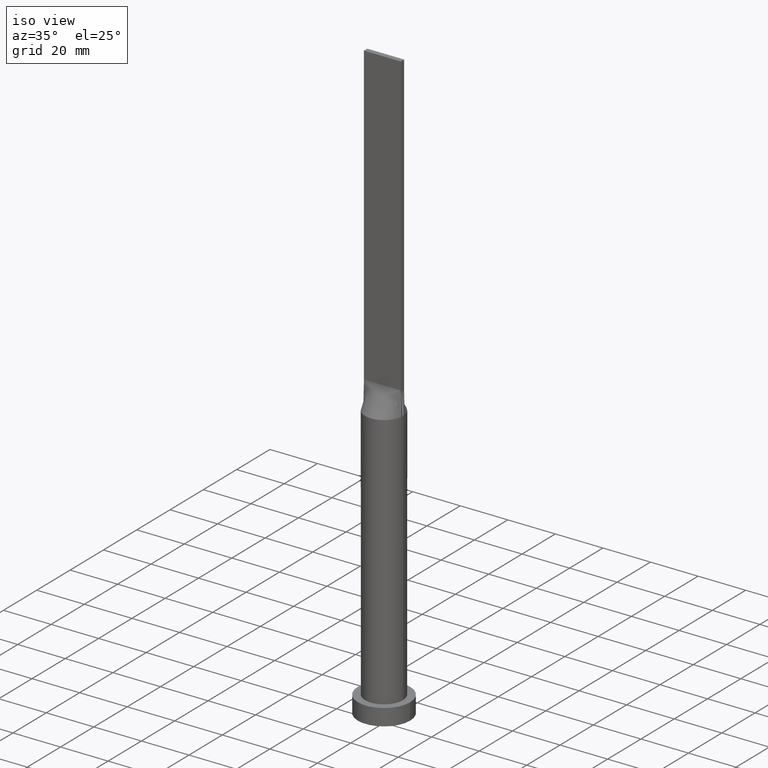
[diagram: clean part render]
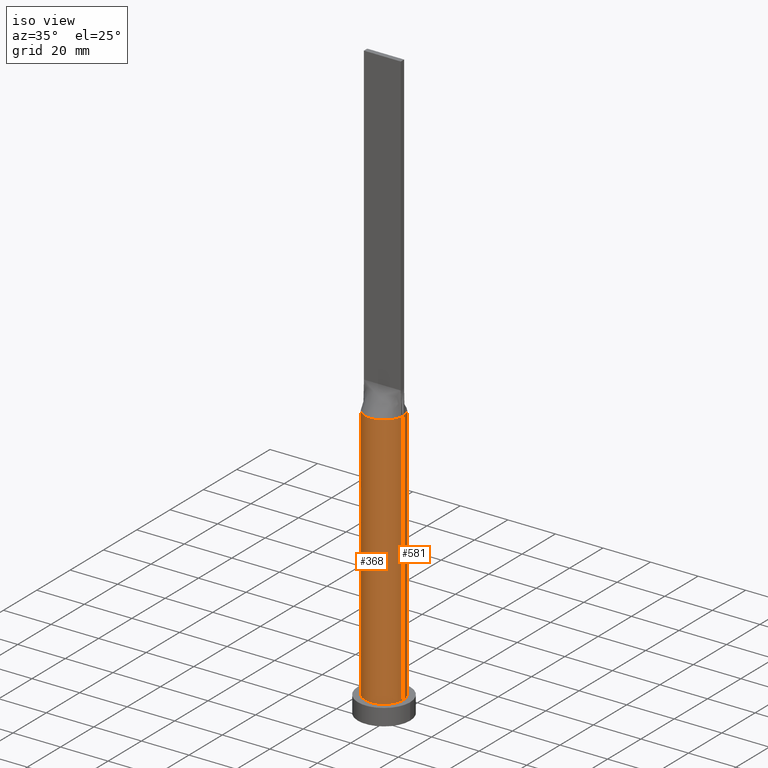
[diagram: same view with one multi-face feature highlighted, each face labeled with its STEP entity id]
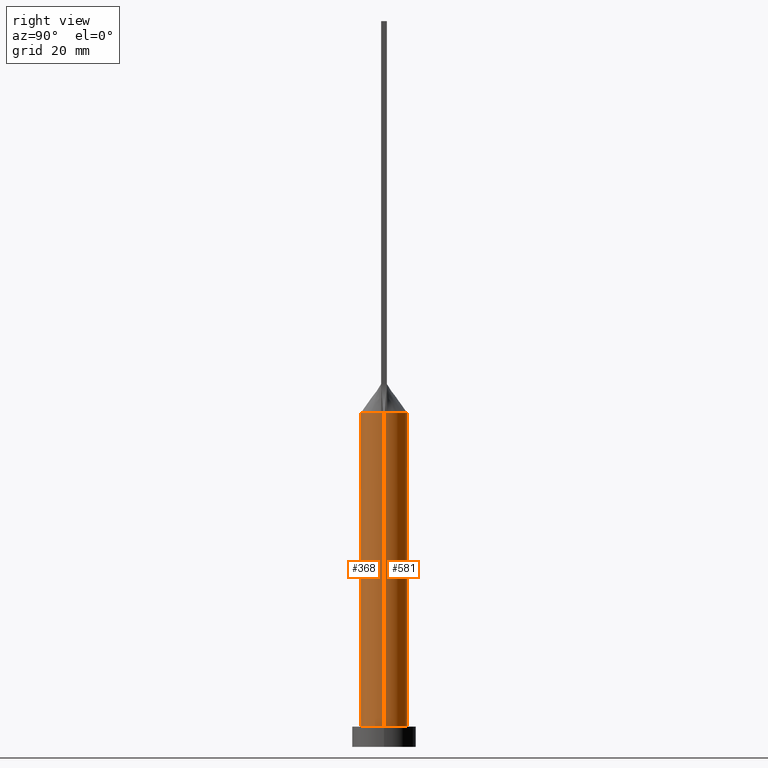
[diagram: same view with one multi-face feature highlighted, each face labeled with its STEP entity id]
A machine part, iso view. The highlighted faces form ONE feature: a constant-radius fillet chain: 2 tangent blend faces with common blend radius 8 mm. The faces share edges in the B-rep.
A second angle (right view) of the same feature is appended — it is thin or edge-on in the first view.
Their STEP definitions:
[1] entity #368 (Cylinder):
#2 = ORIENTED_EDGE ( 'NONE', *, *, #195, .F. ) ;
#20 = VERTEX_POINT ( 'NONE', #77 ) ;
#30 = DIRECTION ( 'NONE',  ( -0.000000000000000000, -0.000000000000000000, -1.000000000000000000 ) ) ;
#39 = CARTESIAN_POINT ( 'NONE',  ( 0.000000000000000000, 0.000000000000000000, 115.0000000000000000 ) ) ;
#41 = ORIENTED_EDGE ( 'NONE', *, *, #576, .F. ) ;
#59 = CARTESIAN_POINT ( 'NONE',  ( 7.999864793045824207, 2.000157186781041891E-15, 115.0000000000000000 ) ) ;
#77 = CARTESIAN_POINT ( 'NONE',  ( 8.000000000000000000, 9.797174393178825657E-16, 7.000000000000000000 ) ) ;
#94 = CARTESIAN_POINT ( 'NONE',  ( 0.000000000000000000, 0.000000000000000000, 115.0000000000000000 ) ) ;
#123 = CIRCLE ( 'NONE', #398, 8.000000000000000000 ) ;
#129 = CARTESIAN_POINT ( 'NONE',  ( 0.000000000000000000, 0.000000000000000000, 7.000000000000000000 ) ) ;
#131 = DIRECTION ( 'NONE',  ( 1.000000000000000000, 0.000000000000000000, 0.000000000000000000 ) ) ;
#140 = DIRECTION ( 'NONE',  ( 1.000000000000000000, 9.769962616701377556E-15, 0.000000000000000000 ) ) ;
#147 = DIRECTION ( 'NONE',  ( 1.000000000000000000, 0.000000000000000000, 0.000000000000000000 ) ) ;
#163 = ORIENTED_EDGE ( 'NONE', *, *, #360, .F. ) ;
#195 = EDGE_CURVE ( 'NONE', #292, #226, #635, .T. ) ;
#204 = CARTESIAN_POINT ( 'NONE',  ( 8.000000000000000000, 9.797174393178825657E-16, 115.0000000000000000 ) ) ;
#221 = ORIENTED_EDGE ( 'NONE', *, *, #594, .F. ) ;
#226 = VERTEX_POINT ( 'NONE', #389 ) ;
#246 = CIRCLE ( 'NONE', #497, 8.000000000000000000 ) ;
#254 = FACE_OUTER_BOUND ( 'NONE', #583, .T. ) ;
#259 = LINE ( 'NONE', #204, #288 ) ;
#273 = ORIENTED_EDGE ( 'NONE', *, *, #488, .T. ) ;
#277 = VERTEX_POINT ( 'NONE', #304 ) ;
#279 = VERTEX_POINT ( 'NONE', #467 ) ;
#280 = CIRCLE ( 'NONE', #617, 8.000000000000000000 ) ;
#281 = CARTESIAN_POINT ( 'NONE',  ( -8.000000000000000000, 0.000000000000000000, 115.0000000000000000 ) ) ;
#288 = VECTOR ( 'NONE', #510, 1000.000000000000000 ) ;
#292 = VERTEX_POINT ( 'NONE', #410 ) ;
#296 = DIRECTION ( 'NONE',  ( 0.000000000000000000, 0.000000000000000000, 1.000000000000000000 ) ) ;
#304 = CARTESIAN_POINT ( 'NONE',  ( -7.999864793045825984, 2.648518981350782698E-14, 115.0000000000000142 ) ) ;
#309 = CARTESIAN_POINT ( 'NONE',  ( 0.000000000000000000, 0.000000000000000000, 115.0000000000000000 ) ) ;
#315 = VERTEX_POINT ( 'NONE', #59 ) ;
#334 = LINE ( 'NONE', #281, #627 ) ;
#360 = EDGE_CURVE ( 'NONE', #315, #20, #259, .T. ) ;
#366 = AXIS2_PLACEMENT_3D ( 'NONE', #94, #402, #585 ) ;
#368 = ADVANCED_FACE ( 'NONE', ( #254 ), #554, .T. ) ;
#386 = DIRECTION ( 'NONE',  ( 0.000000000000000000, 0.000000000000000000, 1.000000000000000000 ) ) ;
#389 = CARTESIAN_POINT ( 'NONE',  ( 7.934268799922667981, -1.023776637617846319, 115.0000000000000000 ) ) ;
#398 = AXIS2_PLACEMENT_3D ( 'NONE', #39, #586, #140 ) ;
#402 = DIRECTION ( 'NONE',  ( 0.000000000000000000, 0.000000000000000000, 1.000000000000000000 ) ) ;
#403 = CARTESIAN_POINT ( 'NONE',  ( 0.000000000000000000, 0.000000000000000000, 115.0000000000000000 ) ) ;
#410 = CARTESIAN_POINT ( 'NONE',  ( -7.934257051336532029, -1.023775119746132001, 115.0000000000000000 ) ) ;
#450 = EDGE_CURVE ( 'NONE', #279, #20, #246, .T. ) ;
#464 = DIRECTION ( 'NONE',  ( -1.000000000000000000, 0.000000000000000000, 0.000000000000000000 ) ) ;
#466 = ORIENTED_EDGE ( 'NONE', *, *, #450, .T. ) ;
#467 = CARTESIAN_POINT ( 'NONE',  ( -8.000000000000000000, 0.000000000000000000, 7.000000000000000000 ) ) ;
#488 = EDGE_CURVE ( 'NONE', #277, #279, #334, .T. ) ;
#497 = AXIS2_PLACEMENT_3D ( 'NONE', #129, #386, #131 ) ;
#508 = DIRECTION ( 'NONE',  ( -0.000000000000000000, -0.000000000000000000, -1.000000000000000000 ) ) ;
#510 = DIRECTION ( 'NONE',  ( -0.000000000000000000, -0.000000000000000000, -1.000000000000000000 ) ) ;
#554 = CYLINDRICAL_SURFACE ( 'NONE', #604, 8.000000000000000000 ) ;
#576 = EDGE_CURVE ( 'NONE', #226, #315, #123, .T. ) ;
#583 = EDGE_LOOP ( 'NONE', ( #163, #41, #2, #221, #273, #466 ) ) ;
#585 = DIRECTION ( 'NONE',  ( 1.000000000000000000, 0.000000000000000000, 0.000000000000000000 ) ) ;
#586 = DIRECTION ( 'NONE',  ( 0.000000000000000000, 0.000000000000000000, 1.000000000000000000 ) ) ;
#594 = EDGE_CURVE ( 'NONE', #277, #292, #280, .T. ) ;
#604 = AXIS2_PLACEMENT_3D ( 'NONE', #309, #508, #464 ) ;
#617 = AXIS2_PLACEMENT_3D ( 'NONE', #403, #296, #147 ) ;
#627 = VECTOR ( 'NONE', #30, 1000.000000000000000 ) ;
#635 = CIRCLE ( 'NONE', #366, 8.000000000000000000 ) ;
[2] entity #581 (Cylinder):
#1 = CARTESIAN_POINT ( 'NONE',  ( -0.5861720261543129640, 7.999999999999998224, 114.9999999999999858 ) ) ;
#5 = CARTESIAN_POINT ( 'NONE',  ( 2.847317194822259534, 7.497028652483948008, 115.0000000000000284 ) ) ;
#8 = CARTESIAN_POINT ( 'NONE',  ( -7.192469010134845853, 3.526369025759696019, 114.9999999999999716 ) ) ;
#10 = CYLINDRICAL_SURFACE ( 'NONE', #206, 8.000000000000000000 ) ;
#16 = AXIS2_PLACEMENT_3D ( 'NONE', #141, #96, #590 ) ;
#20 = VERTEX_POINT ( 'NONE', #77 ) ;
#30 = DIRECTION ( 'NONE',  ( -0.000000000000000000, -0.000000000000000000, -1.000000000000000000 ) ) ;
#45 = CARTESIAN_POINT ( 'NONE',  ( 5.562660223239392465, 5.770452176164421410, 115.0000000000000284 ) ) ;
#59 = CARTESIAN_POINT ( 'NONE',  ( 7.999864793045824207, 2.000157186781041891E-15, 115.0000000000000000 ) ) ;
#64 = CIRCLE ( 'NONE', #151, 8.000000000000000000 ) ;
#75 = ORIENTED_EDGE ( 'NONE', *, *, #274, .F. ) ;
#77 = CARTESIAN_POINT ( 'NONE',  ( 8.000000000000000000, 9.797174393178825657E-16, 7.000000000000000000 ) ) ;
#82 = CARTESIAN_POINT ( 'NONE',  ( -7.934264564332944580, 1.023776086464161406, 115.0000000000000000 ) ) ;
#89 = CARTESIAN_POINT ( 'NONE',  ( -5.562660223239390689, 5.770452176164420521, 115.0000000000000142 ) ) ;
#92 = DIRECTION ( 'NONE',  ( 1.000000000000000000, 0.000000000000000000, 0.000000000000000000 ) ) ;
#96 = DIRECTION ( 'NONE',  ( 0.000000000000000000, 0.000000000000000000, 1.000000000000000000 ) ) ;
#104 = CARTESIAN_POINT ( 'NONE',  ( 7.934252830235720033, 1.023774570959714802, 115.0000000000000000 ) ) ;
#106 = CARTESIAN_POINT ( 'NONE',  ( -6.994548530637814565, 3.908833842696238570, 114.9999999999999858 ) ) ;
#113 = CARTESIAN_POINT ( 'NONE',  ( -7.934264564332944580, 1.023776086464161406, 115.0000000000000000 ) ) ;
#117 = CARTESIAN_POINT ( 'NONE',  ( -6.226863775955933100, 5.046530946333157353, 114.9999999999999858 ) ) ;
#136 = CARTESIAN_POINT ( 'NONE',  ( -2.847317194822260422, 7.497028652483947120, 115.0000000000000284 ) ) ;
#141 = CARTESIAN_POINT ( 'NONE',  ( 0.000000000000000000, 0.000000000000000000, 115.0000000000000000 ) ) ;
#143 = DIRECTION ( 'NONE',  ( -0.000000000000000000, -0.000000000000000000, -1.000000000000000000 ) ) ;
#151 = AXIS2_PLACEMENT_3D ( 'NONE', #536, #302, #92 ) ;
#171 = ORIENTED_EDGE ( 'NONE', *, *, #179, .T. ) ;
#179 = EDGE_CURVE ( 'NONE', #20, #279, #255, .T. ) ;
#189 = DIRECTION ( 'NONE',  ( 0.000000000000000000, 0.000000000000000000, 1.000000000000000000 ) ) ;
#197 = CARTESIAN_POINT ( 'NONE',  ( 0.000000000000000000, 0.000000000000000000, 115.0000000000000000 ) ) ;
#198 = CARTESIAN_POINT ( 'NONE',  ( -1.172177046651856402, 7.934824862069282503, 115.0000000000000284 ) ) ;
#199 = CARTESIAN_POINT ( 'NONE',  ( -7.849610172922081297, 1.679519592204999023, 114.9999999999999858 ) ) ;
#200 = ORIENTED_EDGE ( 'NONE', *, *, #488, .F. ) ;
#204 = CARTESIAN_POINT ( 'NONE',  ( 8.000000000000000000, 9.797174393178825657E-16, 115.0000000000000000 ) ) ;
#206 = AXIS2_PLACEMENT_3D ( 'NONE', #197, #143, #365 ) ;
#212 = EDGE_CURVE ( 'NONE', #469, #277, #243, .T. ) ;
#236 = EDGE_CURVE ( 'NONE', #315, #608, #64, .T. ) ;
#243 = CIRCLE ( 'NONE', #16, 8.000000000000000000 ) ;
#249 = CARTESIAN_POINT ( 'NONE',  ( 2.302877821226935406, 7.683241396761612663, 115.0000000000000284 ) ) ;
#255 = CIRCLE ( 'NONE', #613, 8.000000000000000000 ) ;
#259 = LINE ( 'NONE', #204, #288 ) ;
#274 = EDGE_CURVE ( 'NONE', #608, #469, #517, .T. ) ;
#277 = VERTEX_POINT ( 'NONE', #304 ) ;
#279 = VERTEX_POINT ( 'NONE', #467 ) ;
#281 = CARTESIAN_POINT ( 'NONE',  ( -8.000000000000000000, 0.000000000000000000, 115.0000000000000000 ) ) ;
#287 = CARTESIAN_POINT ( 'NONE',  ( -2.302877821226935851, 7.683241396761610886, 115.0000000000000284 ) ) ;
#288 = VECTOR ( 'NONE', #510, 1000.000000000000000 ) ;
#290 = CARTESIAN_POINT ( 'NONE',  ( 7.849610172922079521, 1.679519592204998801, 114.9999999999999858 ) ) ;
#295 = CARTESIAN_POINT ( 'NONE',  ( 6.511821874825409751, 4.668925682402791821, 115.0000000000000000 ) ) ;
#298 = CARTESIAN_POINT ( 'NONE',  ( 6.226863775955932212, 5.046530946333158241, 115.0000000000000142 ) ) ;
#302 = DIRECTION ( 'NONE',  ( 0.000000000000000000, 0.000000000000000000, 1.000000000000000000 ) ) ;
#304 = CARTESIAN_POINT ( 'NONE',  ( -7.999864793045825984, 2.648518981350782698E-14, 115.0000000000000142 ) ) ;
#315 = VERTEX_POINT ( 'NONE', #59 ) ;
#334 = LINE ( 'NONE', #281, #627 ) ;
#342 = CARTESIAN_POINT ( 'NONE',  ( -4.333237558274722900, 6.745559271922134670, 115.0000000000000284 ) ) ;
#343 = ORIENTED_EDGE ( 'NONE', *, *, #236, .F. ) ;
#347 = FACE_OUTER_BOUND ( 'NONE', #447, .T. ) ;
#349 = CARTESIAN_POINT ( 'NONE',  ( 7.934252830235720033, 1.023774570959714802, 115.0000000000000000 ) ) ;
#352 = CARTESIAN_POINT ( 'NONE',  ( 7.192469010134847629, 3.526369025759696907, 115.0000000000000000 ) ) ;
#360 = EDGE_CURVE ( 'NONE', #315, #20, #259, .T. ) ;
#365 = DIRECTION ( 'NONE',  ( -1.000000000000000000, 0.000000000000000000, 0.000000000000000000 ) ) ;
#399 = DIRECTION ( 'NONE',  ( 1.000000000000000000, 0.000000000000000000, 0.000000000000000000 ) ) ;
#443 = CARTESIAN_POINT ( 'NONE',  ( 3.862537548001455878, 7.028047916340264933, 115.0000000000000284 ) ) ;
#447 = EDGE_LOOP ( 'NONE', ( #343, #621, #171, #200, #572, #75 ) ) ;
#449 = CARTESIAN_POINT ( 'NONE',  ( 0.5861720261543130750, 7.999999999999998224, 115.0000000000000142 ) ) ;
#465 = CARTESIAN_POINT ( 'NONE',  ( -6.511821874825407974, 4.668925682402791821, 115.0000000000000142 ) ) ;
#467 = CARTESIAN_POINT ( 'NONE',  ( -8.000000000000000000, 0.000000000000000000, 7.000000000000000000 ) ) ;
#469 = VERTEX_POINT ( 'NONE', #82 ) ;
#488 = EDGE_CURVE ( 'NONE', #277, #279, #334, .T. ) ;
#490 = CARTESIAN_POINT ( 'NONE',  ( 4.333237558274722900, 6.745559271922132893, 115.0000000000000284 ) ) ;
#501 = CARTESIAN_POINT ( 'NONE',  ( 5.183259239191615464, 6.116644610143058713, 115.0000000000000284 ) ) ;
#504 = CARTESIAN_POINT ( 'NONE',  ( -7.675166908885236339, 2.399868494543667907, 114.9999999999999858 ) ) ;
#510 = DIRECTION ( 'NONE',  ( -0.000000000000000000, -0.000000000000000000, -1.000000000000000000 ) ) ;
#517 = B_SPLINE_CURVE_WITH_KNOTS ( 'NONE', 3,
 ( #349, #290, #541, #352, #546, #295, #298, #45, #501, #490, #443, #5, #249, #582, #449, #1, #198, #287, #136, #593, #342, #534, #89, #117, #465, #106, #8, #504, #199, #113 ),
 .UNSPECIFIED., .F., .F.,
 ( 4, 2, 2, 2, 2, 2, 2, 2, 2, 2, 2, 2, 2, 2, 4 ),
 ( 0.000000000000000000, 0.1250000000000000000, 0.1875000000000000000, 0.2500000000000000000, 0.3125000000000000000, 0.3750000000000000000, 0.4375000000000000000, 0.5000000000000000000, 0.5625000000000000000, 0.6250000000000000000, 0.6875000000000000000, 0.7500000000000000000, 0.8125000000000000000, 0.8750000000000000000, 1.000000000000000000 ),
 .UNSPECIFIED. ) ;
#534 = CARTESIAN_POINT ( 'NONE',  ( -5.183259239191613688, 6.116644610143057825, 114.9999999999999858 ) ) ;
#536 = CARTESIAN_POINT ( 'NONE',  ( 0.000000000000000000, 0.000000000000000000, 115.0000000000000000 ) ) ;
#541 = CARTESIAN_POINT ( 'NONE',  ( 7.675166908885234562, 2.399868494543665243, 114.9999999999999574 ) ) ;
#546 = CARTESIAN_POINT ( 'NONE',  ( 6.994548530637815453, 3.908833842696238570, 115.0000000000000142 ) ) ;
#549 = CARTESIAN_POINT ( 'NONE',  ( 0.000000000000000000, 0.000000000000000000, 7.000000000000000000 ) ) ;
#572 = ORIENTED_EDGE ( 'NONE', *, *, #212, .F. ) ;
#581 = ADVANCED_FACE ( 'NONE', ( #347 ), #10, .T. ) ;
#582 = CARTESIAN_POINT ( 'NONE',  ( 1.172177046651856624, 7.934824862069278950, 115.0000000000000284 ) ) ;
#590 = DIRECTION ( 'NONE',  ( 1.000000000000000000, 0.000000000000000000, 0.000000000000000000 ) ) ;
#593 = CARTESIAN_POINT ( 'NONE',  ( -3.862537548001455878, 7.028047916340264045, 115.0000000000000284 ) ) ;
#608 = VERTEX_POINT ( 'NONE', #104 ) ;
#613 = AXIS2_PLACEMENT_3D ( 'NONE', #549, #189, #399 ) ;
#621 = ORIENTED_EDGE ( 'NONE', *, *, #360, .T. ) ;
#627 = VECTOR ( 'NONE', #30, 1000.000000000000000 ) ;